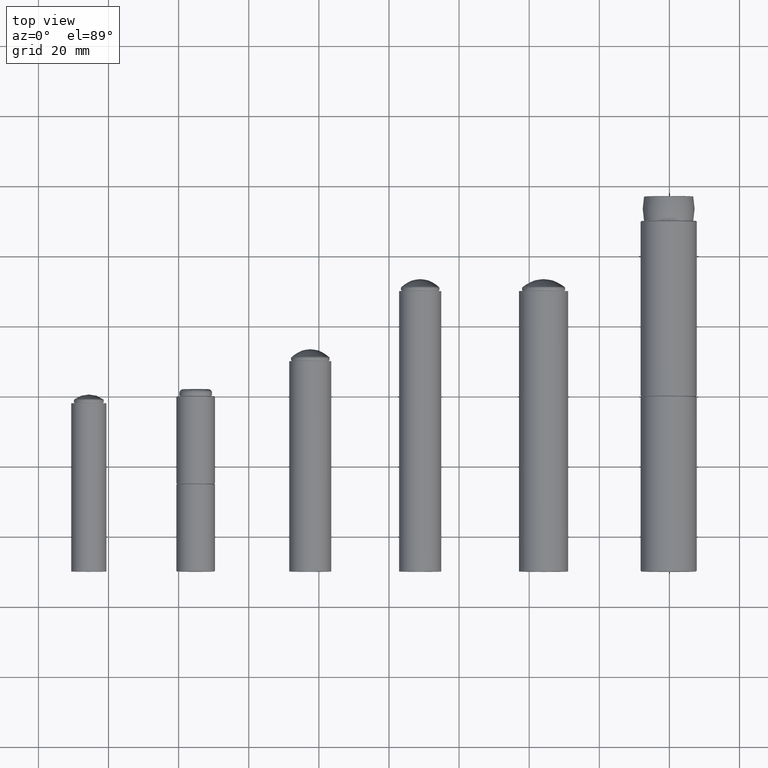
[diagram: clean part render]
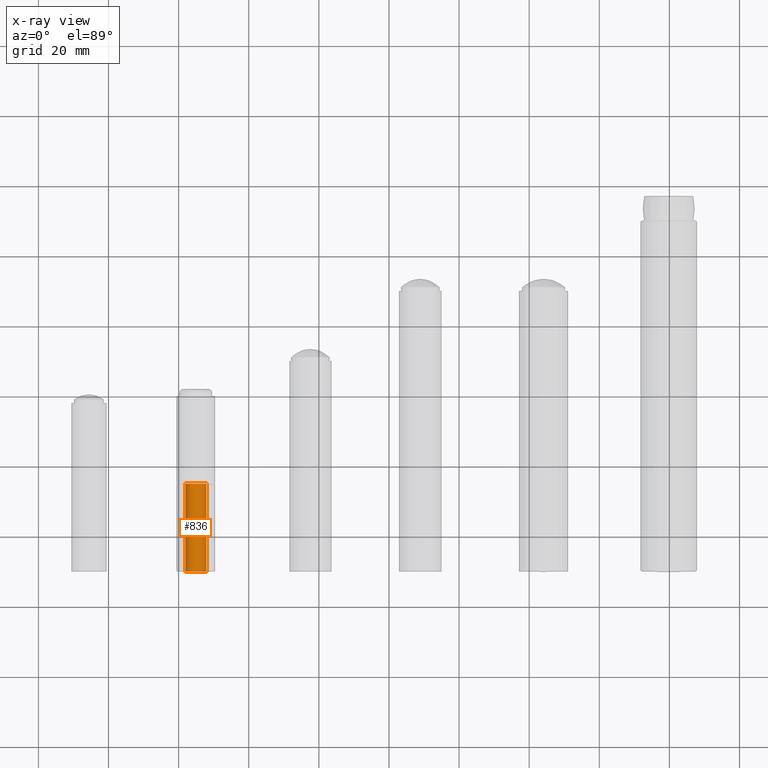
[diagram: x-ray — body ghosted, one internal face saturated and labeled with its STEP entity id]
A machine part, top view, then the same camera in x-ray: the body is ghosted and one INTERNAL B-rep face — a face not visible from any outside direction — is saturated and labeled: STEP entity #836.
In plain terms, the highlighted cylindrical surface (bore or boss wall) has radius 3 mm, axis along (-0, 1, -0).
Its self-contained STEP definition (entity closure, byte-faithful):
#222=FACE_BOUND('',#373,.T.);
#283=FACE_OUTER_BOUND('',#372,.T.);
#372=EDGE_LOOP('',(#698));
#373=EDGE_LOOP('',(#699));
#476=CIRCLE('',#943,3.);
#478=CIRCLE('',#947,3.);
#542=VERTEX_POINT('',#1496);
#544=VERTEX_POINT('',#1502);
#608=EDGE_CURVE('',#542,#542,#476,.T.);
#610=EDGE_CURVE('',#544,#544,#478,.T.);
#698=ORIENTED_EDGE('',*,*,#610,.F.);
#699=ORIENTED_EDGE('',*,*,#608,.F.);
#797=CYLINDRICAL_SURFACE('',#948,3.);
#836=ADVANCED_FACE('',(#283,#222),#797,.F.);
#943=AXIS2_PLACEMENT_3D('',#1497,#1169,#1170);
#947=AXIS2_PLACEMENT_3D('',#1503,#1177,#1178);
#948=AXIS2_PLACEMENT_3D('',#1504,#1179,#1180);
#1169=DIRECTION('center_axis',(0.,0.,1.));
#1170=DIRECTION('ref_axis',(-1.,0.,0.));
#1177=DIRECTION('center_axis',(0.,0.,-1.));
#1178=DIRECTION('ref_axis',(-1.,0.,0.));
#1179=DIRECTION('center_axis',(0.,0.,1.));
#1180=DIRECTION('ref_axis',(-1.,0.,0.));
#1496=CARTESIAN_POINT('',(3.,3.67394039744206E-16,0.));
#1497=CARTESIAN_POINT('Origin',(0.,0.,0.));
#1502=CARTESIAN_POINT('',(3.,3.67394039744206E-16,25.));
#1503=CARTESIAN_POINT('Origin',(0.,0.,25.));
#1504=CARTESIAN_POINT('Origin',(0.,0.,0.));